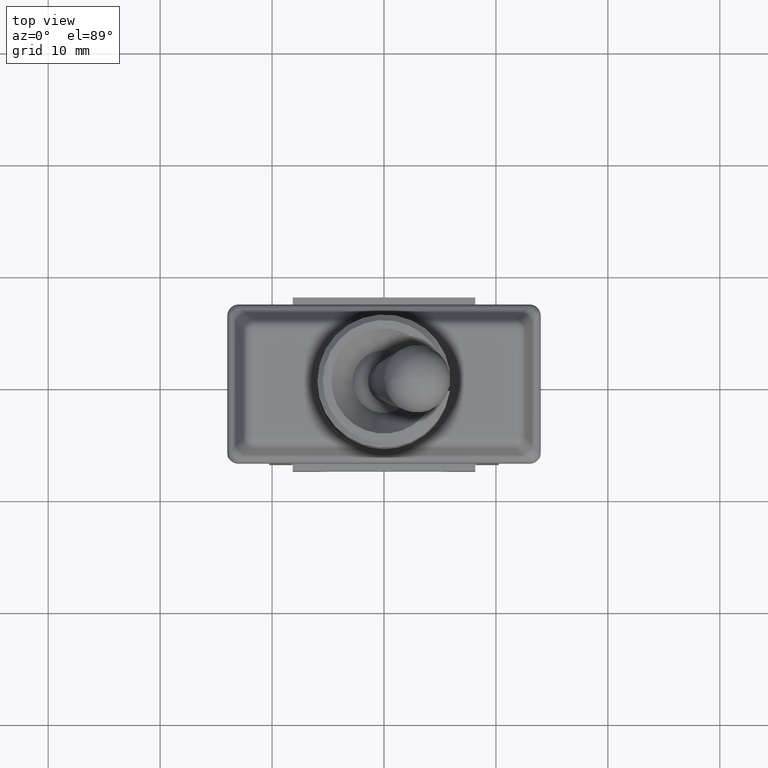
[diagram: clean part render]
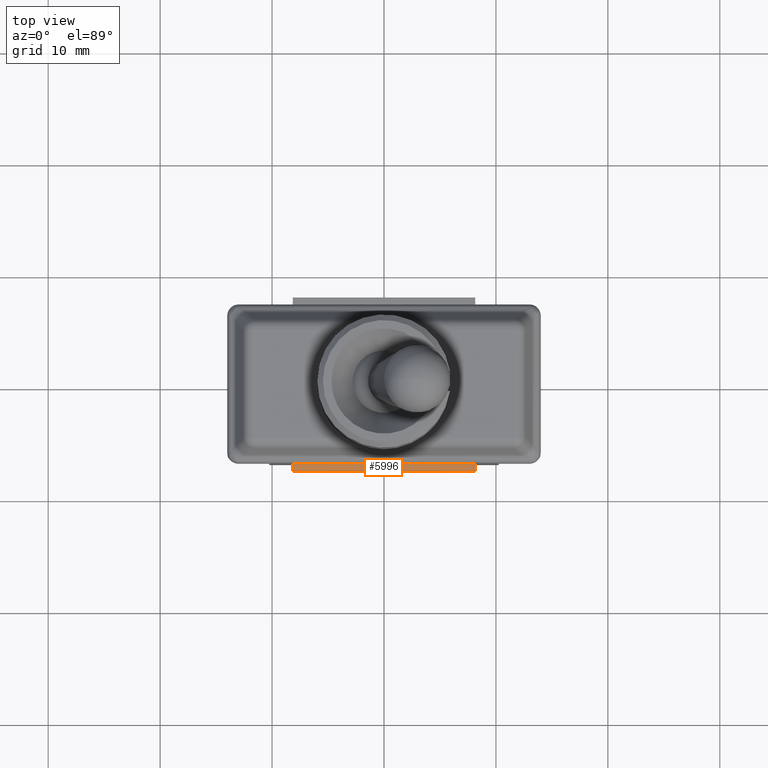
[diagram: same view with one face highlighted and labeled with its STEP entity id]
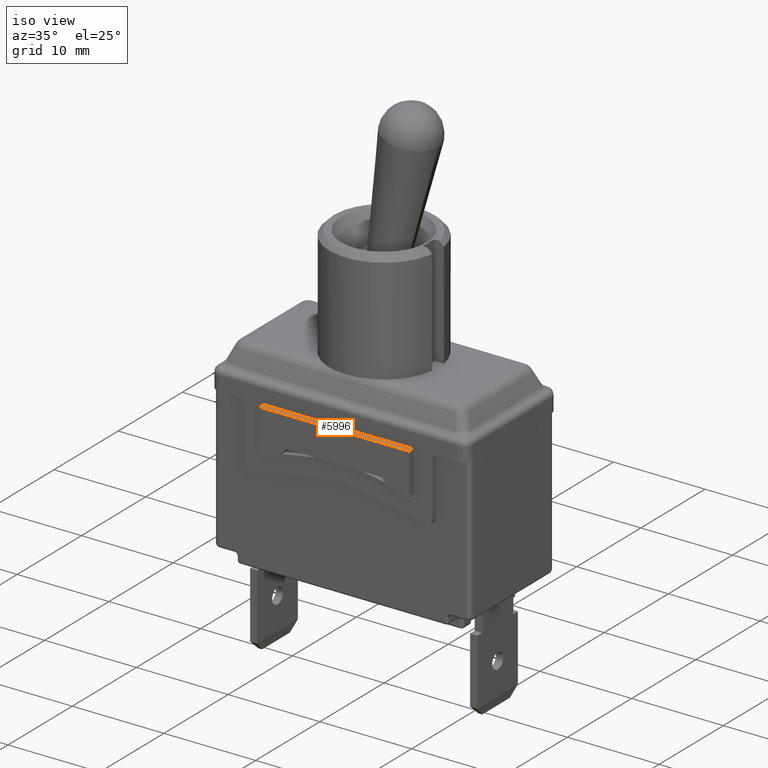
[diagram: same view with one face highlighted and labeled with its STEP entity id]
A machine part, top view. The second image highlights one B-rep face of the part: STEP entity #5996.
A second angle (iso view) of the same face is appended — the face is thin or edge-on in the first view.
In plain terms, the highlighted planar face has unit normal (0, 0, 1).
Its self-contained STEP definition (entity closure, byte-faithful):
#277=PLANE('',#6456);
#475=LINE('',#9229,#984);
#483=LINE('',#9245,#992);
#499=LINE('',#9276,#1008);
#525=LINE('',#9329,#1034);
#984=VECTOR('',#7322,1.);
#992=VECTOR('',#7332,1.);
#1008=VECTOR('',#7360,1.);
#1034=VECTOR('',#7404,1.);
#1585=FACE_OUTER_BOUND('',#1976,.T.);
#1976=EDGE_LOOP('',(#4444,#4445,#4446,#4447));
#2715=VERTEX_POINT('',#9227);
#2716=VERTEX_POINT('',#9228);
#2723=VERTEX_POINT('',#9244);
#2732=VERTEX_POINT('',#9274);
#3319=EDGE_CURVE('',#2715,#2716,#475,.T.);
#3327=EDGE_CURVE('',#2723,#2715,#483,.T.);
#3343=EDGE_CURVE('',#2732,#2716,#499,.T.);
#3369=EDGE_CURVE('',#2732,#2723,#525,.T.);
#4444=ORIENTED_EDGE('',*,*,#3369,.T.);
#4445=ORIENTED_EDGE('',*,*,#3327,.T.);
#4446=ORIENTED_EDGE('',*,*,#3319,.T.);
#4447=ORIENTED_EDGE('',*,*,#3343,.F.);
#5996=ADVANCED_FACE('',(#1585),#277,.T.);
#6456=AXIS2_PLACEMENT_3D('',#9328,#7402,#7403);
#7322=DIRECTION('',(1.,1.58887016046534E-16,0.));
#7332=DIRECTION('',(0.,-1.,0.));
#7360=DIRECTION('',(0.,-1.,0.));
#7402=DIRECTION('center_axis',(0.,0.,1.));
#7403=DIRECTION('ref_axis',(1.,0.,0.));
#7404=DIRECTION('',(-1.,0.,0.));
#9227=CARTESIAN_POINT('',(-0.815,-0.775,0.));
#9228=CARTESIAN_POINT('',(0.815,-0.775,0.));
#9229=CARTESIAN_POINT('',(0.815,-0.775,0.));
#9244=CARTESIAN_POINT('',(-0.815,-0.71,0.));
#9245=CARTESIAN_POINT('',(-0.815,-0.655,0.));
#9274=CARTESIAN_POINT('',(0.815,-0.71,0.));
#9276=CARTESIAN_POINT('',(0.815,-0.655,0.));
#9328=CARTESIAN_POINT('Origin',(1.38777878078145E-16,8.32667268468867E-17,
0.));
#9329=CARTESIAN_POINT('',(0.7,-0.71,0.));